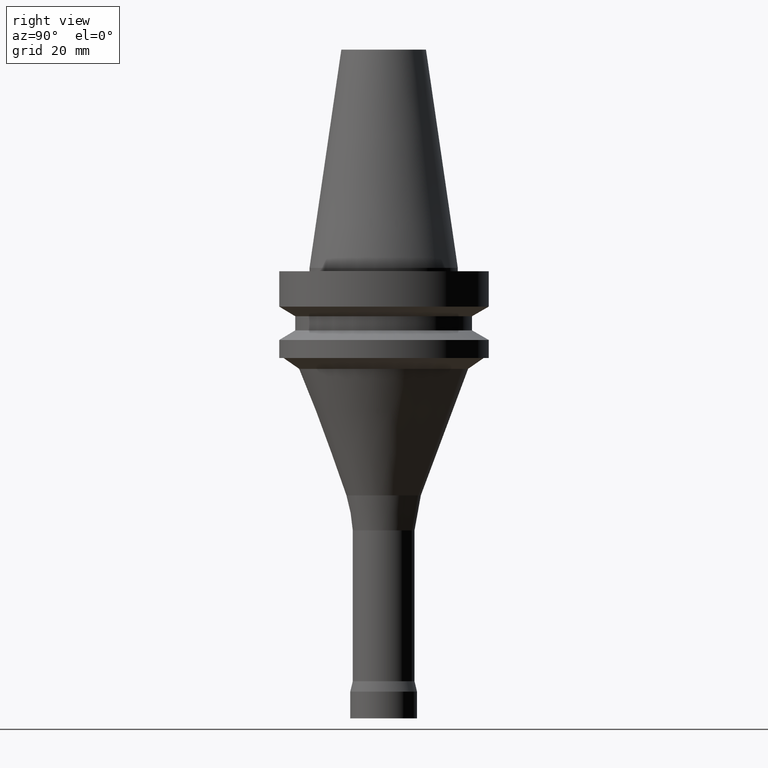
[diagram: clean part render]
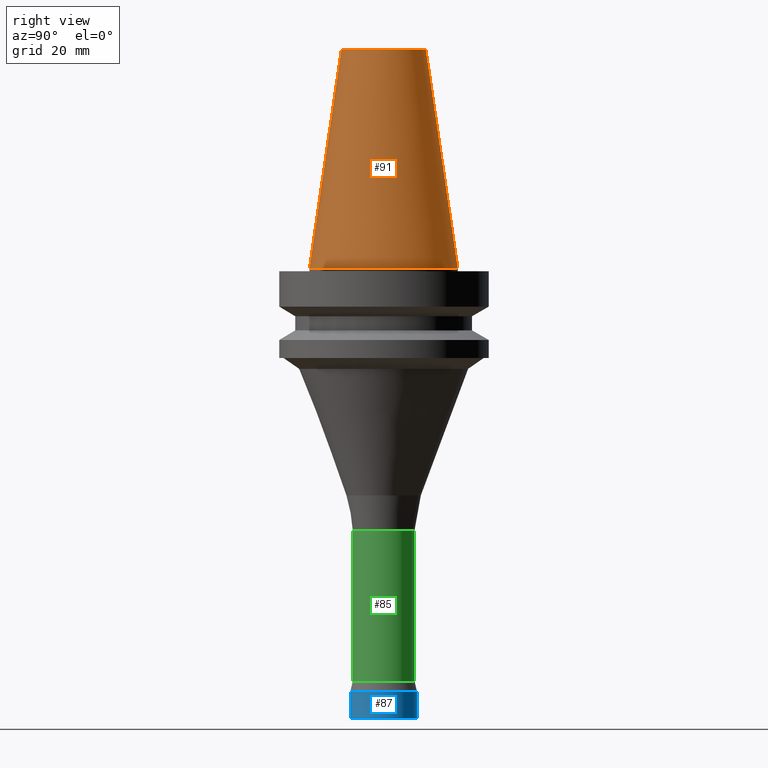
[diagram: same view with three faces highlighted in distinct colors, each labeled with its STEP entity id]
A machine part, right view with three faces highlighted in distinct colors.
Their STEP definitions:

[orange] entity #91 — the highlighted conical surface has half-angle 8.297 deg.
#91=ADVANCED_FACE('',(#139,#140),#141,.T.);
#139=FACE_BOUND('',#188,.T.);
#140=FACE_BOUND('',#189,.T.);
#141=CONICAL_SURFACE('',#190,17.4562500026599,0.144812498159292);
#188=EDGE_LOOP('',(#269));
#189=EDGE_LOOP('',(#270));
#190=AXIS2_PLACEMENT_3D('',#271,#272,#273);
#269=ORIENTED_EDGE('',*,*,#288,.F.);
#270=ORIENTED_EDGE('',*,*,#289,.T.);
#271=CARTESIAN_POINT('',(-2.00229751660592E-015,-4.00459503321184E-015,32.7));
#272=DIRECTION('',(6.12323399573677E-017,1.22464679914735E-016,-1.0));
#273=DIRECTION('',(-1.23259516440783E-032,1.0,1.22464679914735E-016));
#288=EDGE_CURVE('',#318,#318,#319,.T.);
#289=EDGE_CURVE('',#320,#320,#321,.T.);
#318=VERTEX_POINT('',#350);
#319=CIRCLE('',#351,22.225);
#320=VERTEX_POINT('',#352);
#321=CIRCLE('',#353,12.6875000053197);
#350=CARTESIAN_POINT('',(-1.88218999349326E-031,22.225,1.32177751110499E-015));
#351=AXIS2_PLACEMENT_3D('',#396,#397,#398);
#352=CARTESIAN_POINT('',(-4.00459503321185E-015,12.6875000053197,65.4));
#353=AXIS2_PLACEMENT_3D('',#399,#400,#401);
#396=CARTESIAN_POINT('',(8.5826711511335E-032,1.7165342302267E-031,-1.40165656858926E-015));
#397=DIRECTION('',(6.12323399573677E-017,1.22464679914735E-016,-1.0));
#398=DIRECTION('',(-1.23259516440783E-032,1.0,1.22464679914735E-016));
#399=CARTESIAN_POINT('',(-4.00459503321185E-015,-8.00919006642369E-015,65.4));
#400=DIRECTION('',(6.12323399573677E-017,1.22464679914735E-016,-1.0));
#401=DIRECTION('',(-1.23259516440783E-032,1.0,1.22464679914735E-016));

[blue] entity #87 — the highlighted cylindrical surface (bore or boss wall) has radius 10 mm, axis along (-0, -0, 1).
#87=ADVANCED_FACE('',(#129,#130),#131,.T.);
#129=FACE_BOUND('',#178,.T.);
#130=FACE_BOUND('',#179,.T.);
#131=CYLINDRICAL_SURFACE('',#180,10.0);
#178=EDGE_LOOP('',(#251));
#179=EDGE_LOOP('',(#252));
#180=AXIS2_PLACEMENT_3D('',#253,#254,#255);
#251=ORIENTED_EDGE('',*,*,#287,.F.);
#252=ORIENTED_EDGE('',*,*,#286,.T.);
#253=CARTESIAN_POINT('',(8.02143653441516E-015,1.60428730688303E-014,-131.0));
#254=DIRECTION('',(-6.12323399573677E-017,-1.22464679914735E-016,1.0));
#255=DIRECTION('',(-1.23259516440783E-032,1.0,1.22464679914735E-016));
#286=EDGE_CURVE('',#314,#314,#315,.T.);
#287=EDGE_CURVE('',#316,#316,#317,.T.);
#314=VERTEX_POINT('',#346);
#315=CIRCLE('',#347,10.0);
#316=VERTEX_POINT('',#348);
#317=CIRCLE('',#349,10.0);
#346=CARTESIAN_POINT('',(7.77650717458569E-015,10.0,-127.0));
#347=AXIS2_PLACEMENT_3D('',#390,#391,#392);
#348=CARTESIAN_POINT('',(8.26636589424463E-015,10.0,-135.0));
#349=AXIS2_PLACEMENT_3D('',#393,#394,#395);
#390=CARTESIAN_POINT('',(7.77650717458569E-015,1.55530143491714E-014,-127.0));
#391=DIRECTION('',(6.12323399573677E-017,1.22464679914735E-016,-1.0));
#392=DIRECTION('',(-1.23259516440783E-032,1.0,1.22464679914735E-016));
#393=CARTESIAN_POINT('',(8.26636589424463E-015,1.65327317884893E-014,-135.0));
#394=DIRECTION('',(6.12323399573677E-017,1.22464679914735E-016,-1.0));
#395=DIRECTION('',(-1.23259516440783E-032,1.0,1.22464679914735E-016));

[green] entity #85 — the highlighted cylindrical surface (bore or boss wall) has radius 9.25 mm, axis along (-0, -0, 1).
#85=ADVANCED_FACE('',(#123,#124),#125,.T.);
#123=FACE_BOUND('',#172,.T.);
#124=FACE_BOUND('',#173,.T.);
#125=CYLINDRICAL_SURFACE('',#174,9.25);
#172=EDGE_LOOP('',(#241));
#173=EDGE_LOOP('',(#242));
#174=AXIS2_PLACEMENT_3D('',#243,#244,#245);
#241=ORIENTED_EDGE('',*,*,#285,.F.);
#242=ORIENTED_EDGE('',*,*,#284,.T.);
#243=CARTESIAN_POINT('',(6.20121945706373E-015,1.24024389141275E-014,-101.273599235));
#244=DIRECTION('',(-6.12323399573677E-017,-1.22464679914735E-016,1.0));
#245=DIRECTION('',(-1.23259516440783E-032,1.0,1.22464679914735E-016));
#284=EDGE_CURVE('',#310,#310,#311,.T.);
#285=EDGE_CURVE('',#312,#312,#313,.T.);
#310=VERTEX_POINT('',#342);
#311=CIRCLE('',#343,9.25);
#312=VERTEX_POINT('',#344);
#313=CIRCLE('',#345,9.25);
#342=CARTESIAN_POINT('',(4.81723839744025E-015,9.25000000000001,-78.67147329));
#343=AXIS2_PLACEMENT_3D('',#384,#385,#386);
#344=CARTESIAN_POINT('',(7.58520051668721E-015,9.25000000000002,-123.87572518));
#345=AXIS2_PLACEMENT_3D('',#387,#388,#389);
#384=CARTESIAN_POINT('',(4.81723839744025E-015,9.6344767948805E-015,-78.67147329));
#385=DIRECTION('',(6.12323399573677E-017,1.22464679914735E-016,-1.0));
#386=DIRECTION('',(-1.23259516440783E-032,1.0,1.22464679914735E-016));
#387=CARTESIAN_POINT('',(7.58520051668721E-015,1.51704010333744E-014,-123.87572518));
#388=DIRECTION('',(6.12323399573677E-017,1.22464679914735E-016,-1.0));
#389=DIRECTION('',(-1.23259516440783E-032,1.0,1.22464679914735E-016));